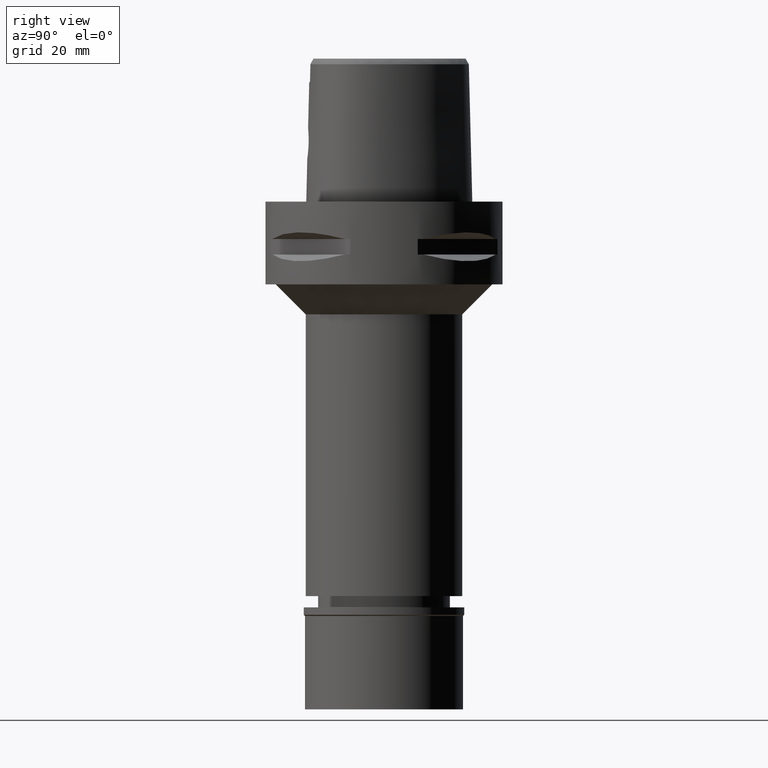
[diagram: clean part render]
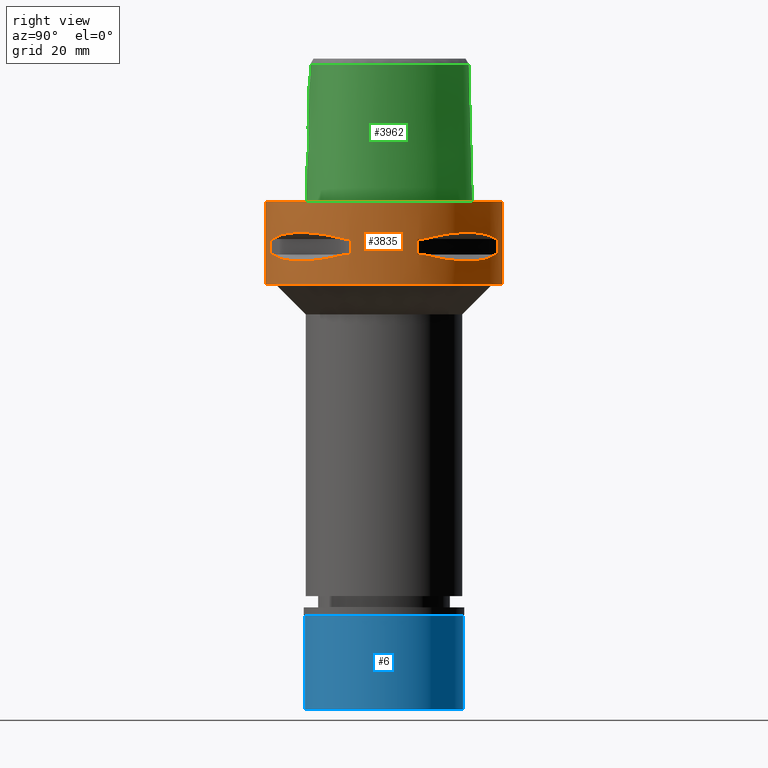
[diagram: same view with three faces highlighted in distinct colors, each labeled with its STEP entity id]
A machine part, right view with three faces highlighted in distinct colors.
Their STEP definitions:

[orange] entity #3835 — the highlighted cylindrical surface (partial cylindrical patch) has radius 31.5 mm, axis along (0, 0, -1).
#33 = DIRECTION ( 'NONE',  ( 0.9433937698468619626, 0.3316748332540863653, 0.0000000000000000000 ) ) ;
#48 = VERTEX_POINT ( 'NONE', #4682 ) ;
#50 = CARTESIAN_POINT ( 'NONE',  ( 0.0000000000000000000, 0.0000000000000000000, -9.950000000000001066 ) ) ;
#52 = FACE_BOUND ( 'NONE', #3610, .T. ) ;
#64 = ORIENTED_EDGE ( 'NONE', *, *, #2281, .F. ) ;
#74 = AXIS2_PLACEMENT_3D ( 'NONE', #248, #4391, #2987 ) ;
#119 = CARTESIAN_POINT ( 'NONE',  ( 26.60451452154907059, 16.86571563436881149, -15.39949295786330197 ) ) ;
#151 = VERTEX_POINT ( 'NONE', #1403 ) ;
#171 = CARTESIAN_POINT ( 'NONE',  ( 25.43927894892505392, -18.59229662064599609, -15.62866126334696482 ) ) ;
#198 = CARTESIAN_POINT ( 'NONE',  ( 15.11986997311391612, -27.64634172017876068, -15.11207862404153524 ) ) ;
#220 = CARTESIAN_POINT ( 'NONE',  ( 28.91382665369116722, -12.73197616787390629, -14.65467361753813513 ) ) ;
#246 = CARTESIAN_POINT ( 'NONE',  ( 0.0000000000000000000, 0.0000000000000000000, -14.05000000000000071 ) ) ;
#248 = CARTESIAN_POINT ( 'NONE',  ( 0.0000000000000000000, 0.0000000000000000000, -9.950000000000001066 ) ) ;
#249 = CIRCLE ( 'NONE', #3212, 31.50000000000000711 ) ;
#262 = ORIENTED_EDGE ( 'NONE', *, *, #2119, .T. ) ;
#308 = DIRECTION ( 'NONE',  ( 0.0000000000000000000, 0.0000000000000000000, 1.000000000000000000 ) ) ;
#346 = EDGE_CURVE ( 'NONE', #848, #151, #2666, .T. ) ;
#410 = AXIS2_PLACEMENT_3D ( 'NONE', #3709, #4118, #2950 ) ;
#425 = EDGE_CURVE ( 'NONE', #1103, #919, #925, .T. ) ;
#437 = CARTESIAN_POINT ( 'NONE',  ( 10.44775724750000023, -29.71690375017999841, -9.950000000002001244 ) ) ;
#442 = CARTESIAN_POINT ( 'NONE',  ( 17.35163608579731687, 26.29071741524046146, -15.46976201925743055 ) ) ;
#454 = CARTESIAN_POINT ( 'NONE',  ( 29.71690375017999841, -10.44775724750000023, -9.950000000002001244 ) ) ;
#469 = LINE ( 'NONE', #3162, #3771 ) ;
#475 = CARTESIAN_POINT ( 'NONE',  ( 8.981198972016999349, 30.19251670572000279, -9.950000000000001066 ) ) ;
#493 = CARTESIAN_POINT ( 'NONE',  ( 26.70521063584596888, 16.70616724746230730, -15.37546661818052307 ) ) ;
#514 = CARTESIAN_POINT ( 'NONE',  ( 29.71690375017999841, -10.44775724750000023, -14.05000000000000071 ) ) ;
#520 = EDGE_CURVE ( 'NONE', #3050, #2548, #4102, .T. ) ;
#579 = EDGE_CURVE ( 'NONE', #3273, #848, #4788, .T. ) ;
#611 = DIRECTION ( 'NONE',  ( 0.3316748332540863653, -0.9433937698468619626, 0.0000000000000000000 ) ) ;
#659 = DIRECTION ( 'NONE',  ( 0.0000000000000000000, 0.0000000000000000000, 1.000000000000000000 ) ) ;
#738 = VERTEX_POINT ( 'NONE', #4890 ) ;
#770 = EDGE_CURVE ( 'NONE', #1542, #1385, #1109, .T. ) ;
#773 = DIRECTION ( 'NONE',  ( 0.0000000000000000000, 0.0000000000000000000, -1.000000000000000000 ) ) ;
#774 = CARTESIAN_POINT ( 'NONE',  ( 12.70097436179019113, 28.92472615206971653, -9.353533115220882266 ) ) ;
#812 = CARTESIAN_POINT ( 'NONE',  ( 21.46242677077769656, 23.08532645888790213, -15.83938991065623014 ) ) ;
#833 = EDGE_CURVE ( 'NONE', #2244, #4586, #3398, .T. ) ;
#837 = CARTESIAN_POINT ( 'NONE',  ( 20.18579225685413903, 24.23018836746430082, -15.78559396979327367 ) ) ;
#848 = VERTEX_POINT ( 'NONE', #1867 ) ;
#868 = CARTESIAN_POINT ( 'NONE',  ( 16.98999780422225214, 26.52527364208797778, -15.41788098766626369 ) ) ;
#876 = DIRECTION ( 'NONE',  ( 0.9584925938322735872, 0.2851174276831918153, 0.0000000000000000000 ) ) ;
#882 = CIRCLE ( 'NONE', #410, 31.50000000000001776 ) ;
#887 = EDGE_LOOP ( 'NONE', ( #2719, #64, #3817, #1960, #4749, #4554, #2382, #4392 ) ) ;
#919 = VERTEX_POINT ( 'NONE', #4488 ) ;
#925 = LINE ( 'NONE', #4064, #2827 ) ;
#929 = CARTESIAN_POINT ( 'NONE',  ( 30.19251670572000279, -8.981198972016999349, -9.950000000000001066 ) ) ;
#935 = CARTESIAN_POINT ( 'NONE',  ( 16.48208282229545318, -26.84474411198741350, -15.34094883778379348 ) ) ;
#956 = DIRECTION ( 'NONE',  ( 0.0000000000000000000, 0.0000000000000000000, -1.000000000000000000 ) ) ;
#966 = CARTESIAN_POINT ( 'NONE',  ( 16.03138450079309862, -27.11872488589068553, -15.26880420108148506 ) ) ;
#979 = AXIS2_PLACEMENT_3D ( 'NONE', #2044, #1739, #3626 ) ;
#1035 = CARTESIAN_POINT ( 'NONE',  ( 0.0000000000000000000, 0.0000000000000000000, -22.00000000000000000 ) ) ;
#1103 = VERTEX_POINT ( 'NONE', #1629 ) ;
#1109 = LINE ( 'NONE', #1480, #4821 ) ;
#1152 = DIRECTION ( 'NONE',  ( 0.0000000000000000000, 0.0000000000000000000, -1.000000000000000000 ) ) ;
#1162 = CARTESIAN_POINT ( 'NONE',  ( 10.44775724750000023, 29.71690375017999841, -14.05000000000000071 ) ) ;
#1175 = CARTESIAN_POINT ( 'NONE',  ( 0.0000000000000000000, 31.50000000000000000, 0.0000000000000000000 ) ) ;
#1176 = CARTESIAN_POINT ( 'NONE',  ( 18.81455742168905232, -25.37277178164058711, -8.309746333112718375 ) ) ;
#1197 = CARTESIAN_POINT ( 'NONE',  ( 20.64154884324731043, -23.90617837150517389, -8.160627831300901747 ) ) ;
#1245 = DIRECTION ( 'NONE',  ( 0.0000000000000000000, 0.0000000000000000000, 1.000000000000000000 ) ) ;
#1265 = CARTESIAN_POINT ( 'NONE',  ( 26.42800887047804181, -17.14106442934815533, -15.43984550238795350 ) ) ;
#1279 = DIRECTION ( 'NONE',  ( 0.0000000000000000000, 0.0000000000000000000, 1.000000000000000000 ) ) ;
#1357 = CARTESIAN_POINT ( 'NONE',  ( 0.0000000000000000000, -31.50000000000000000, 0.0000000000000000000 ) ) ;
#1385 = VERTEX_POINT ( 'NONE', #929 ) ;
#1393 = DIRECTION ( 'NONE',  ( 0.0000000000000000000, 0.0000000000000000000, -1.000000000000000000 ) ) ;
#1403 = CARTESIAN_POINT ( 'NONE',  ( 0.0000000000000000000, 31.50000000000000000, -22.00000000000000000 ) ) ;
#1407 = DIRECTION ( 'NONE',  ( 0.0000000000000000000, 0.0000000000000000000, 1.000000000000000000 ) ) ;
#1480 = CARTESIAN_POINT ( 'NONE',  ( 30.19251670572000279, -8.981198972016999349, -14.05000000000000071 ) ) ;
#1542 = VERTEX_POINT ( 'NONE', #4042 ) ;
#1546 = VERTEX_POINT ( 'NONE', #4819 ) ;
#1548 = CARTESIAN_POINT ( 'NONE',  ( 27.11872488589068553, 16.03138450079309862, -15.26880420108148506 ) ) ;
#1566 = CARTESIAN_POINT ( 'NONE',  ( 16.96123479565122238, 26.54368690921823060, -15.41365572341632095 ) ) ;
#1578 = CARTESIAN_POINT ( 'NONE',  ( 14.84422749205300285, -27.88214534467226713, -8.906206096483272106 ) ) ;
#1629 = CARTESIAN_POINT ( 'NONE',  ( 30.19251670572000279, 8.981198972019999616, -9.950000000000001066 ) ) ;
#1643 = CARTESIAN_POINT ( 'NONE',  ( 26.01217882835248929, -17.76952662671760308, -15.52665221626392800 ) ) ;
#1645 = EDGE_LOOP ( 'NONE', ( #262, #4841, #4566, #3422 ) ) ;
#1646 = ORIENTED_EDGE ( 'NONE', *, *, #1929, .T. ) ;
#1647 = CARTESIAN_POINT ( 'NONE',  ( 14.89252659056515427, 27.86285265926851551, -15.10765629751784012 ) ) ;
#1687 = EDGE_CURVE ( 'NONE', #2978, #738, #3995, .T. ) ;
#1688 = CIRCLE ( 'NONE', #1924, 31.50000000000000000 ) ;
#1694 = VERTEX_POINT ( 'NONE', #2326 ) ;
#1739 = DIRECTION ( 'NONE',  ( 0.0000000000000000000, 0.0000000000000000000, -1.000000000000000000 ) ) ;
#1743 = CARTESIAN_POINT ( 'NONE',  ( 10.44775724750000023, -29.71690375017999841, -14.05000000000000071 ) ) ;
#1759 = VERTEX_POINT ( 'NONE', #2432 ) ;
#1853 = EDGE_CURVE ( 'NONE', #1694, #919, #2414, .T. ) ;
#1867 = CARTESIAN_POINT ( 'NONE',  ( 0.0000000000000000000, -31.50000000000000000, -22.00000000000000000 ) ) ;
#1886 = CARTESIAN_POINT ( 'NONE',  ( 29.71690375017999841, 10.44775724750000023, -9.950000000002001244 ) ) ;
#1924 = AXIS2_PLACEMENT_3D ( 'NONE', #3135, #4584, #3462 ) ;
#1929 = EDGE_CURVE ( 'NONE', #4586, #4090, #2640, .T. ) ;
#1934 = CARTESIAN_POINT ( 'NONE',  ( 8.981198972019999616, -30.19251670572000279, -9.950000000000001066 ) ) ;
#1960 = ORIENTED_EDGE ( 'NONE', *, *, #3965, .F. ) ;
#1969 = EDGE_CURVE ( 'NONE', #4090, #1385, #3045, .T. ) ;
#2041 = ORIENTED_EDGE ( 'NONE', *, *, #770, .F. ) ;
#2044 = CARTESIAN_POINT ( 'NONE',  ( 0.0000000000000000000, 0.0000000000000000000, -14.05000000000000071 ) ) ;
#2056 = CARTESIAN_POINT ( 'NONE',  ( 26.64486562695897121, 16.80193241490862022, -15.38992683736031708 ) ) ;
#2094 = VECTOR ( 'NONE', #773, 1000.000000000000000 ) ;
#2103 = CARTESIAN_POINT ( 'NONE',  ( 26.48642424310703447, -17.05047092244371854, -15.42670883407968674 ) ) ;
#2119 = EDGE_CURVE ( 'NONE', #1546, #3273, #1688, .T. ) ;
#2127 = CARTESIAN_POINT ( 'NONE',  ( 24.23018836746430082, -20.18579225685413903, -15.78559396979327367 ) ) ;
#2177 = CIRCLE ( 'NONE', #3448, 31.50000000000000711 ) ;
#2244 = VERTEX_POINT ( 'NONE', #1934 ) ;
#2274 = CARTESIAN_POINT ( 'NONE',  ( 20.64154884324738148, 23.90617837150510283, -8.160613588479783687 ) ) ;
#2281 = EDGE_CURVE ( 'NONE', #3050, #2770, #469, .T. ) ;
#2325 = FACE_OUTER_BOUND ( 'NONE', #1645, .T. ) ;
#2326 = CARTESIAN_POINT ( 'NONE',  ( 29.71690375017999841, 10.44775724750000023, -14.05000000000000071 ) ) ;
#2368 = CARTESIAN_POINT ( 'NONE',  ( 29.31542262584231651, 11.58970337495594194, -14.35229357167384912 ) ) ;
#2382 = ORIENTED_EDGE ( 'NONE', *, *, #2868, .T. ) ;
#2414 = CIRCLE ( 'NONE', #3440, 31.50000000000000711 ) ;
#2415 = CARTESIAN_POINT ( 'NONE',  ( 10.44775724750000023, -29.71690375017999841, -14.05000000000000071 ) ) ;
#2418 = CARTESIAN_POINT ( 'NONE',  ( 26.84474411198741350, 16.48208282229545318, -15.34094883778379348 ) ) ;
#2432 = CARTESIAN_POINT ( 'NONE',  ( 29.71690375017999841, -10.44775724750000023, -14.05000000000000071 ) ) ;
#2440 = CARTESIAN_POINT ( 'NONE',  ( 20.65093790435025767, -23.89673728057072211, -15.83935804902266931 ) ) ;
#2442 = CARTESIAN_POINT ( 'NONE',  ( 29.71690375017999841, 10.44775724750000023, -14.05000000000000071 ) ) ;
#2460 = CARTESIAN_POINT ( 'NONE',  ( 16.80193241490862022, -26.64486562695897121, -15.38992683736031708 ) ) ;
#2479 = EDGE_CURVE ( 'NONE', #4798, #1759, #4176, .T. ) ;
#2484 = CARTESIAN_POINT ( 'NONE',  ( 23.08532645888790213, -21.46242677077769656, -15.83938991065623014 ) ) ;
#2511 = CARTESIAN_POINT ( 'NONE',  ( 13.25636937905766999, -28.62019653468112068, -14.74888225542022369 ) ) ;
#2532 = LINE ( 'NONE', #4124, #4636 ) ;
#2548 = VERTEX_POINT ( 'NONE', #3071 ) ;
#2640 = B_SPLINE_CURVE_WITH_KNOTS ( 'NONE', 3,
 ( #3094, #4618, #1578, #1176, #1197, #2723, #3871, #4233, #3892, #454 ),
 .UNSPECIFIED., .F., .F.,
 ( 4, 2, 2, 2, 4 ),
 ( 0.0000000000000000000, 0.2500000000000000000, 0.5000000000000000000, 0.7500000000000000000, 1.000000000000000000 ),
 .UNSPECIFIED. ) ;
#2641 = EDGE_CURVE ( 'NONE', #2244, #48, #2532, .T. ) ;
#2666 = CIRCLE ( 'NONE', #4168, 31.50000000000000000 ) ;
#2714 = CARTESIAN_POINT ( 'NONE',  ( 17.14106442934815533, 26.42800887047804181, -15.43984550238795350 ) ) ;
#2719 = ORIENTED_EDGE ( 'NONE', *, *, #3471, .T. ) ;
#2723 = CARTESIAN_POINT ( 'NONE',  ( 23.90617837150511349, -20.64154884324738148, -8.160613588479785463 ) ) ;
#2732 = AXIS2_PLACEMENT_3D ( 'NONE', #50, #1279, #876 ) ;
#2766 = DIRECTION ( 'NONE',  ( 0.0000000000000000000, 0.0000000000000000000, -1.000000000000000000 ) ) ;
#2770 = VERTEX_POINT ( 'NONE', #475 ) ;
#2777 = CARTESIAN_POINT ( 'NONE',  ( 28.62019653468112068, 13.25636937905766999, -14.74888225542022369 ) ) ;
#2804 = CARTESIAN_POINT ( 'NONE',  ( 11.58970337495594194, -29.31542262584231651, -14.35229357167384912 ) ) ;
#2806 = CARTESIAN_POINT ( 'NONE',  ( 17.76952662671760308, 26.01217882835248929, -15.52665221626392800 ) ) ;
#2821 = ORIENTED_EDGE ( 'NONE', *, *, #833, .T. ) ;
#2827 = VECTOR ( 'NONE', #2869, 1000.000000000000000 ) ;
#2868 = EDGE_CURVE ( 'NONE', #1103, #2978, #4887, .T. ) ;
#2869 = DIRECTION ( 'NONE',  ( 0.0000000000000000000, 0.0000000000000000000, -1.000000000000000000 ) ) ;
#2878 = CARTESIAN_POINT ( 'NONE',  ( 16.89910283486696940, -26.58330558444649583, -15.40446471307537202 ) ) ;
#2950 = DIRECTION ( 'NONE',  ( 0.9584925938322735872, -0.2851174276831918153, 0.0000000000000000000 ) ) ;
#2956 = DIRECTION ( 'NONE',  ( 0.0000000000000000000, 0.0000000000000000000, -1.000000000000000000 ) ) ;
#2976 = DIRECTION ( 'NONE',  ( 0.3316748332540863653, 0.9433937698468619626, 0.0000000000000000000 ) ) ;
#2978 = VERTEX_POINT ( 'NONE', #3115 ) ;
#2987 = DIRECTION ( 'NONE',  ( 0.9433937698468619626, -0.3316748332540863653, 0.0000000000000000000 ) ) ;
#3023 = CARTESIAN_POINT ( 'NONE',  ( 28.92474506843117865, 12.70092055735358016, -9.353547358217943142 ) ) ;
#3045 = CIRCLE ( 'NONE', #74, 31.50000000000000711 ) ;
#3050 = VERTEX_POINT ( 'NONE', #4838 ) ;
#3071 = CARTESIAN_POINT ( 'NONE',  ( 10.44775724750000023, 29.71690375017999841, -14.05000000000000071 ) ) ;
#3072 = FACE_BOUND ( 'NONE', #887, .T. ) ;
#3083 = CARTESIAN_POINT ( 'NONE',  ( 25.32725744466094753, 18.86897208075735222, -15.69588095933972838 ) ) ;
#3094 = CARTESIAN_POINT ( 'NONE',  ( 10.44775724750000023, -29.71690375017999841, -9.950000000002001244 ) ) ;
#3115 = CARTESIAN_POINT ( 'NONE',  ( 29.71690375017999841, 10.44775724750000023, -9.950000000002001244 ) ) ;
#3116 = DIRECTION ( 'NONE',  ( 0.0000000000000000000, -1.000000000000000000, 0.0000000000000000000 ) ) ;
#3135 = CARTESIAN_POINT ( 'NONE',  ( 0.0000000000000000000, 0.0000000000000000000, 1.243449787579999883E-14 ) ) ;
#3160 = B_SPLINE_CURVE_WITH_KNOTS ( 'NONE', 3,
 ( #2442, #2368, #2777, #4243, #1548, #2418, #493, #2056, #119, #4703, #3083, #3927, #812, #837, #4605, #2806, #442, #2714, #4221, #868, #1566, #1647, #4652, #1162 ),
 .UNSPECIFIED., .F., .F.,
 ( 4, 1, 1, 1, 1, 1, 2, 2, 2, 1, 1, 1, 1, 1, 2, 2, 4 ),
 ( 0.0000000000000000000, 0.1250000000000017486, 0.1875000000000026090, 0.2187500000000033029, 0.2343750000000038858, 0.2421875000000042744, 0.2460937500000044686, 0.2500000000000046629, 0.5000000000000101030, 0.6250000000000126565, 0.6875000000000138778, 0.7187500000000146549, 0.7343750000000150990, 0.7421875000000150990, 0.7460937500000149880, 0.7500000000000149880, 1.000000000000000000 ),
 .UNSPECIFIED. ) ;
#3162 = CARTESIAN_POINT ( 'NONE',  ( 8.981198972016999349, 30.19251670572000279, -14.05000000000000071 ) ) ;
#3177 = CARTESIAN_POINT ( 'NONE',  ( 16.70616724746230730, -26.70521063584596888, -15.37546661818052307 ) ) ;
#3212 = AXIS2_PLACEMENT_3D ( 'NONE', #246, #1393, #611 ) ;
#3247 = ORIENTED_EDGE ( 'NONE', *, *, #3592, .T. ) ;
#3271 = DIRECTION ( 'NONE',  ( 0.0000000000000000000, -1.000000000000000000, 0.0000000000000000000 ) ) ;
#3273 = VERTEX_POINT ( 'NONE', #4813 ) ;
#3325 = DIRECTION ( 'NONE',  ( 0.0000000000000000000, 0.0000000000000000000, 1.000000000000000000 ) ) ;
#3398 = CIRCLE ( 'NONE', #3549, 31.50000000000001776 ) ;
#3421 = CARTESIAN_POINT ( 'NONE',  ( 18.81462633026355391, 25.37272068403001768, -8.309724968617139496 ) ) ;
#3422 = ORIENTED_EDGE ( 'NONE', *, *, #3725, .F. ) ;
#3434 = EDGE_CURVE ( 'NONE', #4798, #48, #249, .T. ) ;
#3440 = AXIS2_PLACEMENT_3D ( 'NONE', #3493, #2766, #33 ) ;
#3448 = AXIS2_PLACEMENT_3D ( 'NONE', #3731, #659, #2976 ) ;
#3462 = DIRECTION ( 'NONE',  ( 0.0000000000000000000, 1.000000000000000000, 0.0000000000000000000 ) ) ;
#3471 = EDGE_CURVE ( 'NONE', #738, #2770, #2177, .T. ) ;
#3493 = CARTESIAN_POINT ( 'NONE',  ( 0.0000000000000000000, 0.0000000000000000000, -14.05000000000000071 ) ) ;
#3501 = ORIENTED_EDGE ( 'NONE', *, *, #2479, .F. ) ;
#3535 = AXIS2_PLACEMENT_3D ( 'NONE', #3891, #1152, #3116 ) ;
#3549 = AXIS2_PLACEMENT_3D ( 'NONE', #4514, #308, #4868 ) ;
#3592 = EDGE_CURVE ( 'NONE', #1542, #1759, #882, .T. ) ;
#3610 = EDGE_LOOP ( 'NONE', ( #4329, #2041, #3247, #3501, #4643, #3975, #2821, #1646 ) ) ;
#3626 = DIRECTION ( 'NONE',  ( 0.2851174276831918153, 0.9584925938322735872, 0.0000000000000000000 ) ) ;
#3709 = CARTESIAN_POINT ( 'NONE',  ( 0.0000000000000000000, 0.0000000000000000000, -14.05000000000000071 ) ) ;
#3725 = EDGE_CURVE ( 'NONE', #1546, #151, #4183, .T. ) ;
#3731 = CARTESIAN_POINT ( 'NONE',  ( 0.0000000000000000000, 0.0000000000000000000, -9.950000000000001066 ) ) ;
#3771 = VECTOR ( 'NONE', #1245, 1000.000000000000000 ) ;
#3817 = ORIENTED_EDGE ( 'NONE', *, *, #520, .T. ) ;
#3824 = CARTESIAN_POINT ( 'NONE',  ( 27.88214534467228489, 14.84422749205298331, -8.906206096483270329 ) ) ;
#3835 = ADVANCED_FACE ( 'NONE', ( #2325, #52, #3072 ), #4591, .T. ) ;
#3871 = CARTESIAN_POINT ( 'NONE',  ( 25.37272068403008518, -18.81462633026348286, -8.309724968617141272 ) ) ;
#3891 = CARTESIAN_POINT ( 'NONE',  ( 0.0000000000000000000, 0.0000000000000000000, 6.200000000000000178 ) ) ;
#3892 = CARTESIAN_POINT ( 'NONE',  ( 28.92472615206976982, -12.70097436179008099, -9.353533115220889371 ) ) ;
#3927 = CARTESIAN_POINT ( 'NONE',  ( 23.89673728057072211, 20.65093790435025767, -15.83935804902266931 ) ) ;
#3949 = CARTESIAN_POINT ( 'NONE',  ( 26.54368690921823060, -16.96123479565122238, -15.41365572341632095 ) ) ;
#3965 = EDGE_CURVE ( 'NONE', #1694, #2548, #3160, .T. ) ;
#3973 = CARTESIAN_POINT ( 'NONE',  ( 16.86571563436881149, -26.60451452154907059, -15.39949295786330197 ) ) ;
#3975 = ORIENTED_EDGE ( 'NONE', *, *, #2641, .F. ) ;
#3995 = B_SPLINE_CURVE_WITH_KNOTS ( 'NONE', 3,
 ( #1886, #3023, #3824, #4208, #4541, #2274, #3421, #4569, #774, #4491 ),
 .UNSPECIFIED., .F., .F.,
 ( 4, 2, 2, 2, 4 ),
 ( 0.0000000000000000000, 0.2499999999999999445, 0.4999999999999998890, 0.7499999999999997780, 1.000000000000000000 ),
 .UNSPECIFIED. ) ;
#4024 = CARTESIAN_POINT ( 'NONE',  ( 26.52527364208797778, -16.98999780422225214, -15.41788098766626369 ) ) ;
#4042 = CARTESIAN_POINT ( 'NONE',  ( 30.19251670572000279, -8.981198972019999616, -14.05000000000000071 ) ) ;
#4064 = CARTESIAN_POINT ( 'NONE',  ( 30.19251670572000279, 8.981198972016999349, -9.950000000000001066 ) ) ;
#4090 = VERTEX_POINT ( 'NONE', #4364 ) ;
#4102 = CIRCLE ( 'NONE', #979, 31.50000000000001776 ) ;
#4118 = DIRECTION ( 'NONE',  ( 0.0000000000000000000, 0.0000000000000000000, -1.000000000000000000 ) ) ;
#4124 = CARTESIAN_POINT ( 'NONE',  ( 8.981198972016999349, -30.19251670572000279, -9.950000000000001066 ) ) ;
#4168 = AXIS2_PLACEMENT_3D ( 'NONE', #1035, #3325, #3271 ) ;
#4176 = B_SPLINE_CURVE_WITH_KNOTS ( 'NONE', 3,
 ( #2415, #2804, #2511, #198, #966, #935, #3177, #2460, #3973, #2878, #4286, #2440, #2484, #2127, #171, #1643, #4334, #1265, #2103, #4024, #3949, #4387, #220, #514 ),
 .UNSPECIFIED., .F., .F.,
 ( 4, 1, 1, 1, 1, 1, 2, 2, 2, 1, 1, 1, 1, 1, 2, 2, 4 ),
 ( 0.0000000000000000000, 0.1250000000000017486, 0.1875000000000026090, 0.2187500000000033029, 0.2343750000000038858, 0.2421875000000042744, 0.2460937500000044686, 0.2500000000000046629, 0.5000000000000101030, 0.6250000000000126565, 0.6875000000000138778, 0.7187500000000146549, 0.7343750000000150990, 0.7421875000000150990, 0.7460937500000149880, 0.7500000000000149880, 1.000000000000000000 ),
 .UNSPECIFIED. ) ;
#4183 = LINE ( 'NONE', #1175, #2094 ) ;
#4208 = CARTESIAN_POINT ( 'NONE',  ( 25.37277178164058000, 18.81455742168906653, -8.309746333112720151 ) ) ;
#4221 = CARTESIAN_POINT ( 'NONE',  ( 17.05047092244371854, 26.48642424310703447, -15.42670883407968674 ) ) ;
#4233 = CARTESIAN_POINT ( 'NONE',  ( 27.88210502987335460, -14.84430321572431666, -8.906184731987691450 ) ) ;
#4243 = CARTESIAN_POINT ( 'NONE',  ( 27.64634172017876068, 15.11986997311391612, -15.11207862404153524 ) ) ;
#4286 = CARTESIAN_POINT ( 'NONE',  ( 18.86897208075735222, -25.32725744466094753, -15.69588095933972838 ) ) ;
#4329 = ORIENTED_EDGE ( 'NONE', *, *, #1969, .T. ) ;
#4334 = CARTESIAN_POINT ( 'NONE',  ( 26.29071741524046146, -17.35163608579731687, -15.46976201925743055 ) ) ;
#4364 = CARTESIAN_POINT ( 'NONE',  ( 29.71690375017999841, -10.44775724750000023, -9.950000000002001244 ) ) ;
#4387 = CARTESIAN_POINT ( 'NONE',  ( 27.86285265926851551, -14.89252659056515427, -15.10765629751784012 ) ) ;
#4391 = DIRECTION ( 'NONE',  ( 0.0000000000000000000, 0.0000000000000000000, 1.000000000000000000 ) ) ;
#4392 = ORIENTED_EDGE ( 'NONE', *, *, #1687, .T. ) ;
#4488 = CARTESIAN_POINT ( 'NONE',  ( 30.19251670572000279, 8.981198972016999349, -14.05000000000000071 ) ) ;
#4491 = CARTESIAN_POINT ( 'NONE',  ( 10.44775724750000023, 29.71690375017999841, -9.950000000002001244 ) ) ;
#4514 = CARTESIAN_POINT ( 'NONE',  ( 0.0000000000000000000, 0.0000000000000000000, -9.950000000000001066 ) ) ;
#4541 = CARTESIAN_POINT ( 'NONE',  ( 23.90617837150504599, 20.64154884324745609, -8.160627831300901747 ) ) ;
#4554 = ORIENTED_EDGE ( 'NONE', *, *, #425, .F. ) ;
#4566 = ORIENTED_EDGE ( 'NONE', *, *, #346, .T. ) ;
#4569 = CARTESIAN_POINT ( 'NONE',  ( 14.84430321572445344, 27.88210502987327644, -8.906184731987689673 ) ) ;
#4584 = DIRECTION ( 'NONE',  ( 0.0000000000000000000, 0.0000000000000000000, -1.000000000000000000 ) ) ;
#4586 = VERTEX_POINT ( 'NONE', #437 ) ;
#4591 = CYLINDRICAL_SURFACE ( 'NONE', #3535, 31.50000000000000000 ) ;
#4605 = CARTESIAN_POINT ( 'NONE',  ( 18.59229662064599609, 25.43927894892505392, -15.62866126334696482 ) ) ;
#4618 = CARTESIAN_POINT ( 'NONE',  ( 12.70092055735361924, -28.92474506843114668, -9.353547358217939589 ) ) ;
#4636 = VECTOR ( 'NONE', #2956, 1000.000000000000000 ) ;
#4643 = ORIENTED_EDGE ( 'NONE', *, *, #3434, .T. ) ;
#4652 = CARTESIAN_POINT ( 'NONE',  ( 12.73197616787390629, 28.91382665369116722, -14.65467361753813513 ) ) ;
#4682 = CARTESIAN_POINT ( 'NONE',  ( 8.981198972016999349, -30.19251670572000279, -14.05000000000000071 ) ) ;
#4703 = CARTESIAN_POINT ( 'NONE',  ( 26.58330558444649583, 16.89910283486696940, -15.40446471307537202 ) ) ;
#4736 = VECTOR ( 'NONE', #956, 1000.000000000000000 ) ;
#4749 = ORIENTED_EDGE ( 'NONE', *, *, #1853, .T. ) ;
#4788 = LINE ( 'NONE', #1357, #4736 ) ;
#4798 = VERTEX_POINT ( 'NONE', #1743 ) ;
#4813 = CARTESIAN_POINT ( 'NONE',  ( 0.0000000000000000000, -31.50000000000000000, 1.243449787579999883E-14 ) ) ;
#4819 = CARTESIAN_POINT ( 'NONE',  ( 0.0000000000000000000, 31.50000000000000000, 1.243449787579999883E-14 ) ) ;
#4821 = VECTOR ( 'NONE', #1407, 1000.000000000000000 ) ;
#4838 = CARTESIAN_POINT ( 'NONE',  ( 8.981198972019999616, 30.19251670572000279, -14.05000000000000071 ) ) ;
#4841 = ORIENTED_EDGE ( 'NONE', *, *, #579, .T. ) ;
#4868 = DIRECTION ( 'NONE',  ( 0.2851174276831918153, -0.9584925938322735872, 0.0000000000000000000 ) ) ;
#4887 = CIRCLE ( 'NONE', #2732, 31.50000000000001776 ) ;
#4890 = CARTESIAN_POINT ( 'NONE',  ( 10.44775724750000023, 29.71690375017999841, -9.950000000002001244 ) ) ;

[blue] entity #6 — the highlighted cylindrical surface (partial cylindrical patch) has radius 21 mm, axis along (0, 0, -1).
#5 = EDGE_LOOP ( 'NONE', ( #3532, #2417, #4306, #16 ) ) ;
#6 = ADVANCED_FACE ( 'NONE', ( #1005 ), #2392, .T. ) ;
#16 = ORIENTED_EDGE ( 'NONE', *, *, #2407, .F. ) ;
#149 = DIRECTION ( 'NONE',  ( 0.0000000000000000000, 0.0000000000000000000, 1.000000000000000000 ) ) ;
#195 = LINE ( 'NONE', #4765, #379 ) ;
#252 = CIRCLE ( 'NONE', #2391, 21.00000000000000000 ) ;
#321 = CARTESIAN_POINT ( 'NONE',  ( 0.0000000000000000000, 21.00000000000000000, -2.299999999999999822 ) ) ;
#348 = DIRECTION ( 'NONE',  ( 0.0000000000000000000, 0.0000000000000000000, -1.000000000000000000 ) ) ;
#378 = DIRECTION ( 'NONE',  ( 0.0000000000000000000, 0.0000000000000000000, -1.000000000000000000 ) ) ;
#379 = VECTOR ( 'NONE', #3654, 1000.000000000000000 ) ;
#498 = CARTESIAN_POINT ( 'NONE',  ( 0.0000000000000000000, -21.00000000000000000, -2.299999999999999822 ) ) ;
#694 = LINE ( 'NONE', #321, #3700 ) ;
#765 = AXIS2_PLACEMENT_3D ( 'NONE', #3249, #4409, #988 ) ;
#971 = AXIS2_PLACEMENT_3D ( 'NONE', #1216, #378, #1127 ) ;
#988 = DIRECTION ( 'NONE',  ( 0.0000000000000000000, 1.000000000000000000, 0.0000000000000000000 ) ) ;
#1005 = FACE_OUTER_BOUND ( 'NONE', #5, .T. ) ;
#1127 = DIRECTION ( 'NONE',  ( 0.0000000000000000000, -1.000000000000000000, 0.0000000000000000000 ) ) ;
#1173 = VERTEX_POINT ( 'NONE', #498 ) ;
#1216 = CARTESIAN_POINT ( 'NONE',  ( 0.0000000000000000000, 0.0000000000000000000, 0.0000000000000000000 ) ) ;
#1328 = VERTEX_POINT ( 'NONE', #4771 ) ;
#1777 = CARTESIAN_POINT ( 'NONE',  ( 0.0000000000000000000, 0.0000000000000000000, -27.09999999999999787 ) ) ;
#1819 = CIRCLE ( 'NONE', #765, 21.00000000000000000 ) ;
#2391 = AXIS2_PLACEMENT_3D ( 'NONE', #1777, #149, #2486 ) ;
#2392 = CYLINDRICAL_SURFACE ( 'NONE', #971, 21.00000000000000000 ) ;
#2407 = EDGE_CURVE ( 'NONE', #1328, #3799, #694, .T. ) ;
#2417 = ORIENTED_EDGE ( 'NONE', *, *, #4828, .T. ) ;
#2486 = DIRECTION ( 'NONE',  ( 0.0000000000000000000, -1.000000000000000000, 0.0000000000000000000 ) ) ;
#3249 = CARTESIAN_POINT ( 'NONE',  ( 0.0000000000000000000, 0.0000000000000000000, -2.299999999999999822 ) ) ;
#3516 = CARTESIAN_POINT ( 'NONE',  ( 0.0000000000000000000, 21.00000000000000000, -27.09999999999999787 ) ) ;
#3532 = ORIENTED_EDGE ( 'NONE', *, *, #4742, .T. ) ;
#3613 = VERTEX_POINT ( 'NONE', #3681 ) ;
#3654 = DIRECTION ( 'NONE',  ( 0.0000000000000000000, 0.0000000000000000000, -1.000000000000000000 ) ) ;
#3681 = CARTESIAN_POINT ( 'NONE',  ( 0.0000000000000000000, -21.00000000000000000, -27.09999999999999787 ) ) ;
#3700 = VECTOR ( 'NONE', #348, 1000.000000000000000 ) ;
#3799 = VERTEX_POINT ( 'NONE', #3516 ) ;
#4012 = EDGE_CURVE ( 'NONE', #3613, #3799, #252, .T. ) ;
#4306 = ORIENTED_EDGE ( 'NONE', *, *, #4012, .T. ) ;
#4409 = DIRECTION ( 'NONE',  ( 0.0000000000000000000, 0.0000000000000000000, -1.000000000000000000 ) ) ;
#4742 = EDGE_CURVE ( 'NONE', #1328, #1173, #1819, .T. ) ;
#4765 = CARTESIAN_POINT ( 'NONE',  ( 0.0000000000000000000, -21.00000000000000000, -2.299999999999999822 ) ) ;
#4771 = CARTESIAN_POINT ( 'NONE',  ( 0.0000000000000000000, 21.00000000000000000, -2.299999999999999822 ) ) ;
#4828 = EDGE_CURVE ( 'NONE', #1173, #3613, #195, .T. ) ;

[green] entity #3962 — the highlighted face is a freeform B-spline surface patch.
#8 = CARTESIAN_POINT ( 'NONE',  ( 3.927790621348953515, -20.09243382074338413, 14.47756111163828052 ) ) ;
#23 = CARTESIAN_POINT ( 'NONE',  ( -0.7025952811604000425, 23.15559737385000005, 11.93048553905999931 ) ) ;
#25 = EDGE_CURVE ( 'NONE', #266, #937, #47, .T. ) ;
#29 = CARTESIAN_POINT ( 'NONE',  ( 3.850246712570787100, -20.10780614032470837, 14.21172176769479734 ) ) ;
#47 = B_SPLINE_CURVE_WITH_KNOTS ( 'NONE', 3,
 ( #3482, #2371, #3885, #3111 ),
 .UNSPECIFIED., .F., .F.,
 ( 4, 4 ),
 ( 0.0000000000000000000, 1.000000000000000000 ),
 .UNSPECIFIED. ) ;
#78 = CARTESIAN_POINT ( 'NONE',  ( 2.894506219204310948, -20.09690955887031549, 18.33274339089276594 ) ) ;
#98 = CARTESIAN_POINT ( 'NONE',  ( 3.745459306423714274, -20.04797394566475788, 17.04080371185160914 ) ) ;
#121 = VERTEX_POINT ( 'NONE', #4836 ) ;
#128 = CARTESIAN_POINT ( 'NONE',  ( -0.6779734121145000181, -20.37023475603000122, 11.93048553905999931 ) ) ;
#133 = CARTESIAN_POINT ( 'NONE',  ( 3.950323019400082458, -20.04135421479578838, 16.40274729697709688 ) ) ;
#145 = CARTESIAN_POINT ( 'NONE',  ( 1.028701314431084368, -20.37062275902201236, 11.58049741886275541 ) ) ;
#146 = CARTESIAN_POINT ( 'NONE',  ( -1.721531780973000088E-11, 22.56201468012000078, 36.52186680743999858 ) ) ;
#178 = CARTESIAN_POINT ( 'NONE',  ( 3.265869583393927300, -20.07528142228554913, 17.89964299955888904 ) ) ;
#185 = CARTESIAN_POINT ( 'NONE',  ( 2.871987183427143542, -20.09819914941971319, 18.35556622516883962 ) ) ;
#215 = LINE ( 'NONE', #607, #3267 ) ;
#250 = CARTESIAN_POINT ( 'NONE',  ( 3.671249151389730514, -19.60525176641679579, 34.94790639287000289 ) ) ;
#254 = CARTESIAN_POINT ( 'NONE',  ( 1.853272111966999924, -20.08023966233000124, 24.59140896827000233 ) ) ;
#259 = CARTESIAN_POINT ( 'NONE',  ( 3.599362307491986712, -20.14875877779054747, 13.64217581387161182 ) ) ;
#266 = VERTEX_POINT ( 'NONE', #1766 ) ;
#278 = CARTESIAN_POINT ( 'NONE',  ( 16.57726024876999915, -15.19304450312000121, 24.59140896827000233 ) ) ;
#283 = CARTESIAN_POINT ( 'NONE',  ( 2.953000302320876624, -20.23281254683992003, 12.72512295699170082 ) ) ;
#302 = CARTESIAN_POINT ( 'NONE',  ( 21.36961485364000168, -0.3886498180556000048, 24.59140896827000233 ) ) ;
#324 = CARTESIAN_POINT ( 'NONE',  ( 4.987110637788000567, 22.24795273159000075, 11.93048553905999931 ) ) ;
#351 = CARTESIAN_POINT ( 'NONE',  ( 18.35112148606999938, -13.96357030615000028, 11.93048553905999931 ) ) ;
#360 = CARTESIAN_POINT ( 'NONE',  ( 3.328551379740412930, -20.18727222456296744, 13.19186960083967186 ) ) ;
#374 = CARTESIAN_POINT ( 'NONE',  ( 19.54161151507000227, -11.28235466685000077, 37.25233239748000358 ) ) ;
#399 = CARTESIAN_POINT ( 'NONE',  ( 17.53318563476999969, 10.12278921585000013, 24.59140896827000233 ) ) ;
#430 = EDGE_CURVE ( 'NONE', #2322, #937, #2690, .T. ) ;
#452 = CARTESIAN_POINT ( 'NONE',  ( 2.915545606163441050, -20.09570297646316206, 18.31119129211962360 ) ) ;
#489 = CARTESIAN_POINT ( 'NONE',  ( 18.90964962508127556, -12.28759713487792915, 36.52186680739942659 ) ) ;
#529 = CARTESIAN_POINT ( 'NONE',  ( 1.870063857759000081, -20.39691443148999994, 11.93048553905999931 ) ) ;
#541 = CARTESIAN_POINT ( 'NONE',  ( 17.90324024157403571, -13.53935104435983128, 36.52186680739942659 ) ) ;
#547 = CARTESIAN_POINT ( 'NONE',  ( 3.559803832330558304, -20.05788146350366574, 17.44950363746816180 ) ) ;
#601 = CARTESIAN_POINT ( 'NONE',  ( 0.8988479711760153368, -20.37494334817867525, 11.54879813003858935 ) ) ;
#607 = CARTESIAN_POINT ( 'NONE',  ( -1.721531780973000088E-11, 22.56201468012000078, 36.52186680743999858 ) ) ;
#625 = CARTESIAN_POINT ( 'NONE',  ( 1.946611601997928709, -20.32311006286644428, 11.93862046598771265 ) ) ;
#638 = CARTESIAN_POINT ( 'NONE',  ( 1.027682876504142584, -20.17741712424493272, 19.45809765211923548 ) ) ;
#648 = CARTESIAN_POINT ( 'NONE',  ( 6.344715577631999892, -20.31619965487999835, -0.7304378901465999885 ) ) ;
#654 = CARTESIAN_POINT ( 'NONE',  ( 3.289399613304852643, -20.19244639184435641, 13.13636645579001083 ) ) ;
#672 = CARTESIAN_POINT ( 'NONE',  ( 7.259695349121000341, 20.78233549547000081, 24.59140896827000233 ) ) ;
#696 = CARTESIAN_POINT ( 'NONE',  ( 2.438150570192000099, 22.68791623401000024, 24.59140896827000233 ) ) ;
#700 = CARTESIAN_POINT ( 'NONE',  ( 18.06826693023942809, 10.43171877596624064, -2.066734200662292964E-06 ) ) ;
#715 = CARTESIAN_POINT ( 'NONE',  ( 21.13154853379999665, -6.714587026899999422, 37.25233239748000358 ) ) ;
#739 = CARTESIAN_POINT ( 'NONE',  ( 21.94536970734000292, -4.102220499706000112, 11.93048553905999931 ) ) ;
#743 = CARTESIAN_POINT ( 'NONE',  ( 22.24453913037089237, -4.100468749696545956, -2.066734200662292964E-06 ) ) ;
#760 = CARTESIAN_POINT ( 'NONE',  ( 20.16779718297999935, 4.447573588421000146, 24.59140896827000233 ) ) ;
#763 = B_SPLINE_CURVE_WITH_KNOTS ( 'NONE', 3,
 ( #146, #1672, #3154, #4001, #2830, #1724, #3252, #3203, #2078, #2851, #4676, #2774, #4722, #3925, #910, #489, #541, #2029, #3608, #1700, #3231, #4747, #1318 ),
 .UNSPECIFIED., .F., .F.,
 ( 4, 1, 1, 1, 1, 1, 1, 1, 1, 1, 1, 1, 1, 1, 1, 1, 1, 1, 1, 1, 4 ),
 ( 0.0000000000000000000, 0.04382683003322074972, 0.08765366006602062776, 0.1314804900989258452, 0.1753073201318310625, 0.2629609801974309158, 0.3506146402631361569, 0.4382683003289464252, 0.5259219603945464172, 0.5697487904274515236, 0.6135756204602514918, 0.6574024504931567092, 0.6793158655095566933, 0.7012292805259567885, 0.7231426955423566616, 0.7450561105587566457, 0.7888829405916618631, 0.8327097706245670805, 0.8765366006573669377, 0.9641902607230826705, 1.000000000000000000 ),
 .UNSPECIFIED. ) ;
#775 = VERTEX_POINT ( 'NONE', #3776 ) ;
#784 = CARTESIAN_POINT ( 'NONE',  ( -0.4431573287057999910, 22.53713844437000091, 37.25233239748000358 ) ) ;
#820 = CARTESIAN_POINT ( 'NONE',  ( 3.128678969662491482, -20.08334280844267639, 18.07279819847166280 ) ) ;
#832 = CARTESIAN_POINT ( 'NONE',  ( 3.860403433736958601, -20.04330035600994009, 16.72651338064794047 ) ) ;
#839 = CARTESIAN_POINT ( 'NONE',  ( 3.749536200692483057, -20.04778253193092752, 17.03086640831055476 ) ) ;
#854 = CARTESIAN_POINT ( 'NONE',  ( 6.288476565013000119, -20.00290563704000135, 11.93048553905999931 ) ) ;
#910 = CARTESIAN_POINT ( 'NONE',  ( 19.55745538001157513, -11.29150212657400587, 36.52186680739942659 ) ) ;
#937 = VERTEX_POINT ( 'NONE', #3909 ) ;
#943 = CARTESIAN_POINT ( 'NONE',  ( 3.828814954409509586, -20.04436409866676527, 16.82317999465562863 ) ) ;
#965 = CARTESIAN_POINT ( 'NONE',  ( 1.511996643077990310, -20.34900293593731746, 11.74281483622983657 ) ) ;
#984 = CARTESIAN_POINT ( 'NONE',  ( 4.050037399383525916, -20.04599349312465861, 15.75361975467016684 ) ) ;
#997 = CARTESIAN_POINT ( 'NONE',  ( 3.736696120837999402, -19.67778323291999953, 31.80000004972999861 ) ) ;
#1000 = LINE ( 'NONE', #2913, #3297 ) ;
#1054 = CARTESIAN_POINT ( 'NONE',  ( 10.14358053135999960, 18.45723390973000377, 37.25233239748000358 ) ) ;
#1059 = CARTESIAN_POINT ( 'NONE',  ( 11.23259758503158245, -18.89324223631525257, -2.066734200662292964E-06 ) ) ;
#1077 = CARTESIAN_POINT ( 'NONE',  ( 16.38077671595999973, -14.94316433702999980, 37.25233239748000358 ) ) ;
#1083 = CARTESIAN_POINT ( 'NONE',  ( 2.853007646188750357, -20.24348516854156799, 12.62547111175751979 ) ) ;
#1101 = CARTESIAN_POINT ( 'NONE',  ( 18.12052890242999936, -13.74516014317000057, 24.59140896827000233 ) ) ;
#1108 = CARTESIAN_POINT ( 'NONE',  ( 3.714384130523716188, -20.13065104887486712, 13.88538127571099956 ) ) ;
#1123 = CARTESIAN_POINT ( 'NONE',  ( 21.68301093739999885, -0.3332744166804000319, 11.93048553905999931 ) ) ;
#1146 = CARTESIAN_POINT ( 'NONE',  ( 21.99640702115999957, -0.2778990153053000345, -0.7304378901465999885 ) ) ;
#1215 = CARTESIAN_POINT ( 'NONE',  ( 3.787426346251056231, -20.04607170149531115, 16.93525315950302712 ) ) ;
#1224 = CARTESIAN_POINT ( 'NONE',  ( 2.880386059683543110, -20.09771851976560342, 18.34709984349684220 ) ) ;
#1241 = CARTESIAN_POINT ( 'NONE',  ( 3.664274183421038167, -20.05181531545087736, 17.23726368440960854 ) ) ;
#1280 = CARTESIAN_POINT ( 'NONE',  ( 14.36818021398999967, -16.67825709223999908, 24.59140896827000233 ) ) ;
#1318 = CARTESIAN_POINT ( 'NONE',  ( 3.637738219117000238, -19.56971420299000286, 36.52185956443999970 ) ) ;
#1341 = CARTESIAN_POINT ( 'NONE',  ( 1.432005274344609003, -20.35315137661976692, 11.71134280122727311 ) ) ;
#1374 = CARTESIAN_POINT ( 'NONE',  ( -0.4479923869737000297, -20.05810122427000053, 24.59140896827000233 ) ) ;
#1425 = CARTESIAN_POINT ( 'NONE',  ( 10.75753574154999903, 19.18839676157000085, -0.7304378901465999885 ) ) ;
#1450 = CARTESIAN_POINT ( 'NONE',  ( 19.15132509822000273, -12.46323140562000020, 24.59140896827000233 ) ) ;
#1467 = CARTESIAN_POINT ( 'NONE',  ( 2.467729343594165847, -20.12009802658482016, 18.71204267792763787 ) ) ;
#1472 = CARTESIAN_POINT ( 'NONE',  ( 20.65879041319000109, -10.48283616354000003, 11.93048553905999931 ) ) ;
#1475 = CARTESIAN_POINT ( 'NONE',  ( 16.95889175801266191, -15.67838871266147649, -2.066734200662292964E-06 ) ) ;
#1479 = CARTESIAN_POINT ( 'NONE',  ( 3.210108431848968102, -20.20255916619498038, 13.02975361490054063 ) ) ;
#1486 = CARTESIAN_POINT ( 'NONE',  ( 0.4948470747598994190, -20.18628283969000492, 19.54999999999999716 ) ) ;
#1496 = CARTESIAN_POINT ( 'NONE',  ( 22.07548129635000222, -6.850245536236999833, -0.7304378901465999885 ) ) ;
#1501 = CARTESIAN_POINT ( 'NONE',  ( 21.97832652902406636, -0.2810937409606900084, -2.066734200662292964E-06 ) ) ;
#1519 = CARTESIAN_POINT ( 'NONE',  ( 20.07948471261000023, -10.22500054636999955, 37.25233239748000358 ) ) ;
#1526 = CARTESIAN_POINT ( 'NONE',  ( 2.564517737576382572, 23.29328130087780835, -2.066734200662292964E-06 ) ) ;
#1547 = ORIENTED_EDGE ( 'NONE', *, *, #2372, .F. ) ;
#1554 = VERTEX_POINT ( 'NONE', #4018 ) ;
#1594 = CARTESIAN_POINT ( 'NONE',  ( -0.4812391256217999902, 23.48607176813000308, -0.7304378901465999885 ) ) ;
#1672 = CARTESIAN_POINT ( 'NONE',  ( 0.7901461619514797974, 22.56201467849785658, 36.52186680739942659 ) ) ;
#1700 = CARTESIAN_POINT ( 'NONE',  ( 10.91891095221457419, -18.03046396093137815, 36.52186680739942659 ) ) ;
#1709 = CARTESIAN_POINT ( 'NONE',  ( -9.433993878921999819E-13, -20.38876923348000147, 11.44999999999999929 ) ) ;
#1724 = CARTESIAN_POINT ( 'NONE',  ( 10.15538781006817182, 18.47129526702395452, 36.52186680739942659 ) ) ;
#1734 = CARTESIAN_POINT ( 'NONE',  ( 3.736696120837999402, -19.67778323291999953, 31.80000004972999861 ) ) ;
#1756 = CARTESIAN_POINT ( 'NONE',  ( 14.68244497380999825, -17.23001773488000055, -0.7304378901465999885 ) ) ;
#1762 = CARTESIAN_POINT ( 'NONE',  ( 2.503154195451693376, -19.81241979350841476, 31.80000012137773524 ) ) ;
#1766 = CARTESIAN_POINT ( 'NONE',  ( 2.041042029990999821E-08, -19.88004246002000031, 31.80000004972000127 ) ) ;
#1783 = CARTESIAN_POINT ( 'NONE',  ( 11.13012652863999996, -18.61140108638999990, 11.93048553905999931 ) ) ;
#1789 = CARTESIAN_POINT ( 'NONE',  ( 0.5100579658811899009, -20.38531276215466903, 11.47358267918783881 ) ) ;
#1805 = DIRECTION ( 'NONE',  ( -5.771735079090829379E-13, -0.02499051295389925070, -0.9996876883618708298 ) ) ;
#1820 = CARTESIAN_POINT ( 'NONE',  ( 2.032175996680010588, -20.14130468680036046, 19.00576489868234731 ) ) ;
#1832 = CARTESIAN_POINT ( 'NONE',  ( 7.099337602270000325, 20.50831360947000093, 37.25233239748000358 ) ) ;
#1835 = CARTESIAN_POINT ( 'NONE',  ( 2.113823676138480767, -20.67500005166150601, -2.066734200662292964E-06 ) ) ;
#1839 = CARTESIAN_POINT ( 'NONE',  ( 2.570081009084386192, -20.27170108689807293, 12.36908902939368460 ) ) ;
#1858 = CARTESIAN_POINT ( 'NONE',  ( 0.5990981971630999769, 23.20165460353999975, 11.93048553905999931 ) ) ;
#1865 = CARTESIAN_POINT ( 'NONE',  ( 2.282207029747092886, -20.29700151028867694, 12.15162930637129612 ) ) ;
#1877 = CARTESIAN_POINT ( 'NONE',  ( 19.66427015052999749, -12.83600704984000096, -0.7304378901465999885 ) ) ;
#1902 = CARTESIAN_POINT ( 'NONE',  ( 14.42198652406999848, 15.65278600593999769, -0.7304378901465999885 ) ) ;
#1930 = CARTESIAN_POINT ( 'NONE',  ( 13.69241953084999963, 15.03666369704000161, 37.25233239748000358 ) ) ;
#1992 = CARTESIAN_POINT ( 'NONE',  ( 2.963657114688500016, -20.09293563006355399, 18.26079471621683226 ) ) ;
#2019 = CARTESIAN_POINT ( 'NONE',  ( 1.886855603551000016, -20.71358920065999953, -0.7304378901465999885 ) ) ;
#2029 = CARTESIAN_POINT ( 'NONE',  ( 16.39211273426368010, -14.95758104715331172, 36.52186680739942659 ) ) ;
#2076 = ORIENTED_EDGE ( 'NONE', *, *, #2521, .T. ) ;
#2078 = CARTESIAN_POINT ( 'NONE',  ( 19.88562079789310388, 4.345879946637026592, 36.52186680739942659 ) ) ;
#2091 = CARTESIAN_POINT ( 'NONE',  ( 4.045013207771214425, -20.05847505277924725, 15.28275217491512272 ) ) ;
#2097 = EDGE_LOOP ( 'NONE', ( #3455, #2076, #1547, #3946, #3780, #2848, #3708, #4137 ) ) ;
#2126 = CARTESIAN_POINT ( 'NONE',  ( 1.537967824490865887, -20.34761404973959031, 11.75337532982797484 ) ) ;
#2193 = CARTESIAN_POINT ( 'NONE',  ( 16.77374378157000123, -15.44292466921000084, 11.93048553905999931 ) ) ;
#2215 = CARTESIAN_POINT ( 'NONE',  ( 21.44619278797999939, -6.759806530011999826, 24.59140896827000233 ) ) ;
#2218 = CARTESIAN_POINT ( 'NONE',  ( 6.341471028391895359, -20.29812505114589172, -2.066734200662292964E-06 ) ) ;
#2237 = CARTESIAN_POINT ( 'NONE',  ( 2.373090251857999711, 22.37624315646999662, 37.25233239748000358 ) ) ;
#2241 = CARTESIAN_POINT ( 'NONE',  ( 18.56841068905494652, -14.16937991845690448, -2.066734200662292964E-06 ) ) ;
#2256 = CARTESIAN_POINT ( 'NONE',  ( 1.767192251264180891, -20.15197845540239996, 19.14519926631463775 ) ) ;
#2263 = CARTESIAN_POINT ( 'NONE',  ( 21.05621876987999741, -0.4440252194307000022, 37.25233239748000358 ) ) ;
#2287 = CARTESIAN_POINT ( 'NONE',  ( 20.96392229434999877, -8.820258253058000264, 24.59140896827000233 ) ) ;
#2315 = CARTESIAN_POINT ( 'NONE',  ( 19.86834399741999846, 4.339653554736999652, 37.25233239748000358 ) ) ;
#2322 = VERTEX_POINT ( 'NONE', #1709 ) ;
#2323 = CARTESIAN_POINT ( 'NONE',  ( 4.020738798819311732, -20.06858537622277439, 14.99755720161237527 ) ) ;
#2338 = CARTESIAN_POINT ( 'NONE',  ( -0.6642815133024000396, 22.52377613712999960, 37.25233239748000358 ) ) ;
#2371 = CARTESIAN_POINT ( 'NONE',  ( 6.820967334231694887E-09, -19.98212988583717120, 27.71666688228249953 ) ) ;
#2372 = EDGE_CURVE ( 'NONE', #775, #121, #3296, .T. ) ;
#2401 = CARTESIAN_POINT ( 'NONE',  ( 3.003234361618615011, -20.09064592609322020, 18.21745801850156354 ) ) ;
#2402 = CARTESIAN_POINT ( 'NONE',  ( 10.91263697724000004, -18.01320772894000299, 37.25233239748000358 ) ) ;
#2431 = CARTESIAN_POINT ( 'NONE',  ( -0.4520500660052000352, -20.37458439286999834, 11.93048553905999931 ) ) ;
#2451 = FACE_OUTER_BOUND ( 'NONE', #2097, .T. ) ;
#2510 = CARTESIAN_POINT ( 'NONE',  ( 1.527965580144895252, -20.34815231994709350, 11.74928068373195345 ) ) ;
#2521 = EDGE_CURVE ( 'NONE', #2763, #121, #763, .T. ) ;
#2529 = DIRECTION ( 'NONE',  ( 1.720264183761959277E-12, 0.02499051290962944413, -0.9996876883629776112 ) ) ;
#2567 = CARTESIAN_POINT ( 'NONE',  ( 3.042491796687598615, -20.22274507510632802, 12.82354767343123747 ) ) ;
#2590 = CARTESIAN_POINT ( 'NONE',  ( 21.57281239769000081, -9.001246196690999568, -0.7304378901465999885 ) ) ;
#2596 = CARTESIAN_POINT ( 'NONE',  ( 19.64947370050258613, -12.82525393668216651, -2.066734200662292964E-06 ) ) ;
#2613 = CARTESIAN_POINT ( 'NONE',  ( 2.568271206859999989, 23.31126238909000037, -0.7304378901465999885 ) ) ;
#2618 = CARTESIAN_POINT ( 'NONE',  ( 14.40795642928249976, 15.64093753352469385, -2.066734200662292964E-06 ) ) ;
#2631 = CARTESIAN_POINT ( 'NONE',  ( 2.673904828756407337, -20.10928166633797076, 18.54472627324917156 ) ) ;
#2637 = CARTESIAN_POINT ( 'NONE',  ( 19.40779762437999878, -12.64961922773000147, 11.93048553905999931 ) ) ;
#2642 = CARTESIAN_POINT ( 'NONE',  ( -7.554100652393000659E-12, -20.67499999999999716, 5.806466418789999109E-14 ) ) ;
#2662 = CARTESIAN_POINT ( 'NONE',  ( 18.08416038776000079, 10.44089487477999967, -0.7304378901465999885 ) ) ;
#2665 = CARTESIAN_POINT ( 'NONE',  ( 7.571159460527183249, 21.31457035722905502, -2.066734200662292964E-06 ) ) ;
#2688 = CARTESIAN_POINT ( 'NONE',  ( 22.26285557066000109, -4.100361500018000704, -0.7304378901465999885 ) ) ;
#2690 = B_SPLINE_CURVE_WITH_KNOTS ( 'NONE', 3,
 ( #4039, #4378, #1789, #601, #145, #4675, #3555, #1341, #2877, #965, #2510, #2126, #3657, #625, #1865, #4114, #1839, #3705, #3349, #4512, #3323, #2946, #4138, #1083, #283, #2567, #4912, #1479, #654, #360, #3043, #4564, #259, #4538, #4840, #1108, #4457, #29, #8, #3489, #2323, #3988, #2091, #3188, #3595, #3217, #984, #3677, #133, #4473, #832, #943, #1215, #3980, #2759, #839, #98, #1241, #547, #3615, #178, #820, #2791, #2401, #1992, #452, #78, #1224, #185, #3767, #2631, #3409, #1467, #4166, #3028, #4919, #1820, #3007, #2256, #4072, #3807, #3361, #638, #1486, #4547 ),
 .UNSPECIFIED., .F., .F.,
 ( 4, 2, 2, 1, 1, 1, 2, 2, 2, 2, 2, 1, 1, 2, 2, 2, 2, 2, 2, 1, 2, 2, 2, 2, 1, 2, 2, 2, 2, 1, 1, 1, 2, 2, 2, 2, 2, 1, 1, 2, 2, 2, 2, 2, 2, 1, 2, 2, 4 ),
 ( 0.0000000000000000000, 0.06250000000000036082, 0.09375000000000059674, 0.1093750000000007216, 0.1171875000000007216, 0.1210937500000006800, 0.1230468750000005967, 0.1250000000000004996, 0.1874999999999977796, 0.2187499999999965028, 0.2343749999999958644, 0.2421874999999956701, 0.2460937499999956146, 0.2480468749999956424, 0.2499999999999956424, 0.2812500000000002776, 0.2968750000000027756, 0.3125000000000052736, 0.3437500000000101585, 0.3593750000000124345, 0.3671875000000135447, 0.3750000000000146549, 0.4375000000000242584, 0.4687500000000290323, 0.4843750000000315858, 0.4921875000000329181, 0.5000000000000341949, 0.5625000000000416334, 0.5937500000000454081, 0.6093750000000477396, 0.6171875000000488498, 0.6210937500000494049, 0.6230468750000492939, 0.6250000000000492939, 0.6875000000000419664, 0.7187500000000378586, 0.7343750000000356382, 0.7421875000000348610, 0.7460937500000344169, 0.7480468750000344169, 0.7500000000000344169, 0.7812500000000295319, 0.7968750000000273115, 0.8125000000000252021, 0.8437500000000208722, 0.8593750000000188738, 0.8671875000000178746, 0.8750000000000169864, 1.000000000000000000 ),
 .UNSPECIFIED. ) ;
#2759 = CARTESIAN_POINT ( 'NONE',  ( 3.755991642141464304, -20.04748304465435993, 17.01495889863737432 ) ) ;
#2763 = VERTEX_POINT ( 'NONE', #4613 ) ;
#2774 = CARTESIAN_POINT ( 'NONE',  ( 21.14970177531354878, -6.717195943319764773, 36.52186680739942659 ) ) ;
#2791 = CARTESIAN_POINT ( 'NONE',  ( 3.080229322184548035, -20.08617626112495103, 18.13071590546288192 ) ) ;
#2803 = B_SPLINE_CURVE_WITH_KNOTS ( 'NONE', 3,
 ( #2642, #1835, #2218, #1059, #4509, #1475, #2241, #2596, #4585, #4563, #3016, #4136, #743, #1501, #4157, #700, #2618, #4909, #2665, #4177, #1526, #3772, #3065 ),
 .UNSPECIFIED., .F., .F.,
 ( 4, 1, 1, 1, 1, 1, 1, 1, 1, 1, 1, 1, 1, 1, 1, 1, 1, 1, 1, 1, 4 ),
 ( 0.0000000000000000000, 0.08333333333339000559, 0.1666666666667000196, 0.2083333333333000081, 0.2500000000000000000, 0.2916666666666999919, 0.3125000000000000000, 0.3333333333333000081, 0.3541666666666000163, 0.3749999999998999689, 0.4166666666666000163, 0.4583333333332000326, 0.4999999999998999689, 0.5833333333331000015, 0.6666666666664999852, 0.7499999999998000488, 0.8333333333329999704, 0.8749999999997000177, 0.9166666666664000651, 0.9583333333329999704, 1.000000000000000000 ),
 .UNSPECIFIED. ) ;
#2817 = CARTESIAN_POINT ( 'NONE',  ( 14.21104783406999950, -16.40237677092000013, 37.25233239748000358 ) ) ;
#2830 = CARTESIAN_POINT ( 'NONE',  ( 7.108589361577482002, 20.52412316394452674, 36.52186680739942659 ) ) ;
#2848 = ORIENTED_EDGE ( 'NONE', *, *, #430, .F. ) ;
#2851 = CARTESIAN_POINT ( 'NONE',  ( 21.07429999883084193, -0.4408303635840806201, 36.52186680739942659 ) ) ;
#2877 = CARTESIAN_POINT ( 'NONE',  ( 1.488028627206210652, -20.35026873354180665, 11.73319909950379092 ) ) ;
#2913 = CARTESIAN_POINT ( 'NONE',  ( -9.433993878921999819E-13, -20.38876923348000147, 11.44999999999999929 ) ) ;
#2939 = CARTESIAN_POINT ( 'NONE',  ( 6.175998539774999685, -19.37631760135000292, 37.25233239748000358 ) ) ;
#2946 = CARTESIAN_POINT ( 'NONE',  ( 2.830175095662165408, -20.24590160278924600, 12.60298252333854663 ) ) ;
#2964 = CARTESIAN_POINT ( 'NONE',  ( 10.55288400482000100, 18.94467581095999975, 11.93048553905999931 ) ) ;
#2992 = CARTESIAN_POINT ( 'NONE',  ( 4.868968357505999656, 21.95285521589000055, 24.59140896827000233 ) ) ;
#3007 = CARTESIAN_POINT ( 'NONE',  ( 1.856701250911930279, -20.14848423775700681, 19.09993988372597684 ) ) ;
#3013 = CARTESIAN_POINT ( 'NONE',  ( 20.09084467149000020, -11.59945457875999963, 11.93048553905999931 ) ) ;
#3016 = CARTESIAN_POINT ( 'NONE',  ( 21.55524830979042150, -8.996025405396677499, -2.066734200662292964E-06 ) ) ;
#3028 = CARTESIAN_POINT ( 'NONE',  ( 2.305334229535943802, -20.12831948498825341, 18.83048013503533014 ) ) ;
#3036 = CARTESIAN_POINT ( 'NONE',  ( 21.62788384401000030, -4.104079499395000497, 24.59140896827000233 ) ) ;
#3043 = CARTESIAN_POINT ( 'NONE',  ( 3.437023659522733698, -20.17240543791111307, 13.35378256640194650 ) ) ;
#3046 = B_SPLINE_CURVE_WITH_KNOTS ( 'NONE', 3,
 ( #1734, #1762, #3243, #4455 ),
 .UNSPECIFIED., .F., .F.,
 ( 4, 4 ),
 ( 0.0000000000000000000, 1.000000000000000000 ),
 .UNSPECIFIED. ) ;
#3062 = CARTESIAN_POINT ( 'NONE',  ( 13.93560852859000043, 15.24203780001000119, 24.59140896827000233 ) ) ;
#3065 = CARTESIAN_POINT ( 'NONE',  ( 4.563156939745000540E-11, 23.47499999999000053, 5.514107688971999147E-14 ) ) ;
#3111 = CARTESIAN_POINT ( 'NONE',  ( 0.0000000000000000000, -20.18628283968999781, 19.55000000000000071 ) ) ;
#3132 = CARTESIAN_POINT ( 'NONE',  ( -0.4558512610111000174, 22.85344955228999808, 24.59140896827000233 ) ) ;
#3154 = CARTESIAN_POINT ( 'NONE',  ( 2.376843874103184096, 22.39422497744606133, 36.52186680739942659 ) ) ;
#3180 = CARTESIAN_POINT ( 'NONE',  ( -0.7217521650893998775, 23.47150799222000117, -0.7304378901465999885 ) ) ;
#3188 = CARTESIAN_POINT ( 'NONE',  ( 4.048221369819505533, -20.05572751809215148, 15.37605551826763239 ) ) ;
#3189 = EDGE_CURVE ( 'NONE', #775, #266, #3046, .T. ) ;
#3191 = CARTESIAN_POINT ( 'NONE',  ( -0.4439347079422999998, -19.74161805566999917, 37.25233239748000358 ) ) ;
#3203 = CARTESIAN_POINT ( 'NONE',  ( 17.27359236348904048, 9.972912859140306452, 36.52186680739942659 ) ) ;
#3217 = CARTESIAN_POINT ( 'NONE',  ( 4.049995275655164484, -20.05320010482691373, 15.46762644421683852 ) ) ;
#3231 = CARTESIAN_POINT ( 'NONE',  ( 7.300578979383843148, -19.07170738130534104, 36.52186680739942659 ) ) ;
#3243 = CARTESIAN_POINT ( 'NONE',  ( 1.251533272182431267, -19.88005341395449932, 31.80000012137773524 ) ) ;
#3252 = CARTESIAN_POINT ( 'NONE',  ( 13.70645019739091097, 15.04851265230396962, 36.52186680739942659 ) ) ;
#3267 = VECTOR ( 'NONE', #2529, 999.9999999999998863 ) ;
#3296 = B_SPLINE_CURVE_WITH_KNOTS ( 'NONE', 3,
 ( #997, #3694, #250, #3366 ),
 .UNSPECIFIED., .F., .F.,
 ( 4, 4 ),
 ( 0.0000000000000000000, 1.000000000000000000 ),
 .UNSPECIFIED. ) ;
#3297 = VECTOR ( 'NONE', #1805, 1000.000000000000114 ) ;
#3319 = CARTESIAN_POINT ( 'NONE',  ( 14.52531259390000073, -16.95413741355999804, 11.93048553905999931 ) ) ;
#3323 = CARTESIAN_POINT ( 'NONE',  ( 2.808608589973694336, -20.24816661311869481, 12.58196638594458072 ) ) ;
#3344 = EDGE_CURVE ( 'NONE', #3645, #1554, #2803, .T. ) ;
#3349 = CARTESIAN_POINT ( 'NONE',  ( 2.714817435291130288, -20.25772213911184849, 12.49437854280306937 ) ) ;
#3361 = CARTESIAN_POINT ( 'NONE',  ( 1.583085234474147729, -20.15857747892414764, 19.22794739783282481 ) ) ;
#3366 = CARTESIAN_POINT ( 'NONE',  ( 3.637738219117000238, -19.56971420299000286, 36.52185956443999970 ) ) ;
#3368 = CARTESIAN_POINT ( 'NONE',  ( 5.105252918069000501, 22.54305024730000184, -0.7304378901465999885 ) ) ;
#3395 = CARTESIAN_POINT ( 'NONE',  ( 18.58171406970000206, -14.18198046912999999, -0.7304378901465999885 ) ) ;
#3409 = CARTESIAN_POINT ( 'NONE',  ( 2.520050460812478299, -20.11738995382086514, 18.67115940202065261 ) ) ;
#3414 = CARTESIAN_POINT ( 'NONE',  ( 20.36546124970000093, -11.75800453470999862, -0.7304378901465999885 ) ) ;
#3432 = CARTESIAN_POINT ( 'NONE',  ( 20.76670355411999935, 4.663413655789000245, -0.7304378901465999885 ) ) ;
#3455 = ORIENTED_EDGE ( 'NONE', *, *, #4760, .F. ) ;
#3457 = CARTESIAN_POINT ( 'NONE',  ( 18.89485257207000046, -12.27684358351000071, 37.25233239748000358 ) ) ;
#3482 = CARTESIAN_POINT ( 'NONE',  ( 2.041042029990999821E-08, -19.88004246002000031, 31.80000004972000127 ) ) ;
#3489 = CARTESIAN_POINT ( 'NONE',  ( 4.002664568992802430, -20.07397280446608789, 14.86850854358316631 ) ) ;
#3555 = CARTESIAN_POINT ( 'NONE',  ( 1.319600680390656811, -20.35863312411228421, 11.66994494017201411 ) ) ;
#3595 = CARTESIAN_POINT ( 'NONE',  ( 4.049643110176806005, -20.05399160878187814, 15.43795828973407325 ) ) ;
#3608 = CARTESIAN_POINT ( 'NONE',  ( 14.22011350745951574, -16.41829354688277931, 36.52186680739942659 ) ) ;
#3615 = CARTESIAN_POINT ( 'NONE',  ( 3.346444325181144208, -20.07049246070038606, 17.78503332968190520 ) ) ;
#3645 = VERTEX_POINT ( 'NONE', #3777 ) ;
#3657 = CARTESIAN_POINT ( 'NONE',  ( 1.734379789056268439, -20.33697246834248062, 11.83436638252621975 ) ) ;
#3677 = CARTESIAN_POINT ( 'NONE',  ( 4.026067555606275938, -20.04243146964168787, 16.01312629722239578 ) ) ;
#3694 = CARTESIAN_POINT ( 'NONE',  ( 3.704239288984441103, -19.64128042389065598, 33.37395322129999897 ) ) ;
#3698 = CARTESIAN_POINT ( 'NONE',  ( -0.4561077450366000097, -20.69106756147000326, -0.7304378901465999885 ) ) ;
#3705 = CARTESIAN_POINT ( 'NONE',  ( 2.628027080903733825, -20.26624238139267931, 12.41747670475470855 ) ) ;
#3708 = ORIENTED_EDGE ( 'NONE', *, *, #3889, .T. ) ;
#3722 = CARTESIAN_POINT ( 'NONE',  ( -0.6718836805062998740, -20.05378834289000167, 24.59140896827000233 ) ) ;
#3742 = CARTESIAN_POINT ( 'NONE',  ( 7.420053095971999468, 21.05635738145999980, 11.93048553905999931 ) ) ;
#3765 = CARTESIAN_POINT ( 'NONE',  ( 0.6155340743139999793, 23.51883498281999962, -0.7304378901465999885 ) ) ;
#3767 = CARTESIAN_POINT ( 'NONE',  ( 2.772326413959757208, -20.10389738242800917, 18.45539022241212379 ) ) ;
#3772 = CARTESIAN_POINT ( 'NONE',  ( 0.8548392459695188794, 23.47500005167019665, -2.066734200662292964E-06 ) ) ;
#3776 = CARTESIAN_POINT ( 'NONE',  ( 3.736696120837999402, -19.67778323291999953, 31.80000004972999861 ) ) ;
#3777 = CARTESIAN_POINT ( 'NONE',  ( -7.554100652393000659E-12, -20.67499999999999716, 5.806466418789999109E-14 ) ) ;
#3780 = ORIENTED_EDGE ( 'NONE', *, *, #25, .T. ) ;
#3794 = CARTESIAN_POINT ( 'NONE',  ( 20.36913756290000066, -10.35391835495999935, 24.59140896827000233 ) ) ;
#3807 = CARTESIAN_POINT ( 'NONE',  ( 1.613182323484495306, -20.15753140428485324, 19.21500890072704948 ) ) ;
#3812 = CARTESIAN_POINT ( 'NONE',  ( 21.76083704216000214, -6.805026033124000229, 11.93048553905999931 ) ) ;
#3838 = CARTESIAN_POINT ( 'NONE',  ( 17.80867301126000157, 10.28184204531000034, 11.93048553905999931 ) ) ;
#3882 = CARTESIAN_POINT ( 'NONE',  ( -0.4685451933164999638, 23.16976066020999880, 11.93048553905999931 ) ) ;
#3885 = CARTESIAN_POINT ( 'NONE',  ( 6.840933290501420598E-09, -20.08420636276543547, 23.63333344114123236 ) ) ;
#3889 = EDGE_CURVE ( 'NONE', #2322, #3645, #1000, .T. ) ;
#3909 = CARTESIAN_POINT ( 'NONE',  ( 0.0000000000000000000, -20.18628283968999781, 19.55000000000000071 ) ) ;
#3925 = CARTESIAN_POINT ( 'NONE',  ( 20.09619608768375443, -10.23243839430028146, 36.52186680739942659 ) ) ;
#3937 = CARTESIAN_POINT ( 'NONE',  ( 6.232237552394000346, -19.68961161920000080, 24.59140896827000233 ) ) ;
#3946 = ORIENTED_EDGE ( 'NONE', *, *, #3189, .T. ) ;
#3951 = CARTESIAN_POINT ( 'NONE',  ( 0.5662264428612999723, 22.56729384499999824, 37.25233239748000358 ) ) ;
#3962 = ADVANCED_FACE ( 'NONE', ( #2451 ), #4649, .T. ) ;
#3980 = CARTESIAN_POINT ( 'NONE',  ( 3.765593220699258392, -20.04704214534180906, 16.99108095766955984 ) ) ;
#3988 = CARTESIAN_POINT ( 'NONE',  ( 4.038482248007211339, -20.06165359963147665, 15.18817722016143179 ) ) ;
#4001 = CARTESIAN_POINT ( 'NONE',  ( 4.757642236485535747, 21.67478320247843016, 36.52186680739942659 ) ) ;
#4018 = CARTESIAN_POINT ( 'NONE',  ( 4.563156939745000540E-11, 23.47499999999000053, 5.514107688971999147E-14 ) ) ;
#4030 = CARTESIAN_POINT ( 'NONE',  ( 14.17879752633000123, 15.44741190297999900, 11.93048553905999931 ) ) ;
#4039 = CARTESIAN_POINT ( 'NONE',  ( -9.433993878921999819E-13, -20.38876923348000147, 11.44999999999999929 ) ) ;
#4072 = CARTESIAN_POINT ( 'NONE',  ( 1.675120599128862686, -20.15532933629845758, 19.18749499249262769 ) ) ;
#4081 = CARTESIAN_POINT ( 'NONE',  ( -0.6840631437227000511, -20.68668116917000432, -0.7304378901465999885 ) ) ;
#4109 = CARTESIAN_POINT ( 'NONE',  ( 7.580410842822999484, 21.33037926746000323, -0.7304378901465999885 ) ) ;
#4114 = CARTESIAN_POINT ( 'NONE',  ( 2.396851615580802175, -20.28741283536880502, 12.23208293719615547 ) ) ;
#4131 = CARTESIAN_POINT ( 'NONE',  ( 2.503210888525999600, 22.99958931155000030, 11.93048553905999931 ) ) ;
#4136 = CARTESIAN_POINT ( 'NONE',  ( 22.05732879458533091, -6.847636726131219653, -2.066734200662292964E-06 ) ) ;
#4137 = ORIENTED_EDGE ( 'NONE', *, *, #3344, .T. ) ;
#4138 = CARTESIAN_POINT ( 'NONE',  ( 2.844541275135316738, -20.24438467540248254, 12.61708719066292339 ) ) ;
#4152 = CARTESIAN_POINT ( 'NONE',  ( 21.26836734601999979, -8.910752224874999072, 11.93048553905999931 ) ) ;
#4157 = CARTESIAN_POINT ( 'NONE',  ( 20.74942745768056795, 4.657187517616106831, -2.066734200662292964E-06 ) ) ;
#4166 = CARTESIAN_POINT ( 'NONE',  ( 2.361140904826402043, -20.12552479265203331, 18.79118822093476027 ) ) ;
#4172 = CARTESIAN_POINT ( 'NONE',  ( 17.25769825828000137, 9.963736386382999299, 37.25233239748000358 ) ) ;
#4177 = CARTESIAN_POINT ( 'NONE',  ( 5.098437036568777003, 22.52602543879534025, -2.066734200662292964E-06 ) ) ;
#4196 = CARTESIAN_POINT ( 'NONE',  ( 20.46725036855000113, 4.555493622105000640, 11.93048553905999931 ) ) ;
#4264 = CARTESIAN_POINT ( 'NONE',  ( -0.6834383972313999855, 22.83968675549000338, 24.59140896827000233 ) ) ;
#4274 = CARTESIAN_POINT ( 'NONE',  ( 11.23887130433999992, -18.91049776510999791, -0.7304378901465999885 ) ) ;
#4299 = CARTESIAN_POINT ( 'NONE',  ( -0.6657939488980999521, -19.73734192973999768, 37.25233239748000358 ) ) ;
#4378 = CARTESIAN_POINT ( 'NONE',  ( 0.2519697368790916325, -20.38876923348000503, 11.44999999999999751 ) ) ;
#4449 = CARTESIAN_POINT ( 'NONE',  ( 11.02138175294000000, -18.31230440766999834, 24.59140896827000233 ) ) ;
#4455 = CARTESIAN_POINT ( 'NONE',  ( 2.041042029990999821E-08, -19.88004246002000031, 31.80000004972000127 ) ) ;
#4457 = CARTESIAN_POINT ( 'NONE',  ( 3.727121516744355656, -20.12854809717472904, 13.91496385434327010 ) ) ;
#4473 = CARTESIAN_POINT ( 'NONE',  ( 3.918456791372860515, -20.04170609324360086, 16.53266420031398098 ) ) ;
#4478 = CARTESIAN_POINT ( 'NONE',  ( 10.34823226808999941, 18.70095486035000221, 24.59140896827000233 ) ) ;
#4505 = CARTESIAN_POINT ( 'NONE',  ( 4.750826077225000610, 21.65775770017999591, 37.25233239748000358 ) ) ;
#4509 = CARTESIAN_POINT ( 'NONE',  ( 14.67337966984966258, -17.21410160753009677, -2.066734200662292964E-06 ) ) ;
#4512 = CARTESIAN_POINT ( 'NONE',  ( 2.758179676623911725, -20.25337897196574843, 12.53390918841327206 ) ) ;
#4528 = CARTESIAN_POINT ( 'NONE',  ( 20.94844326348000152, -10.61175397212999982, -0.7304378901465999885 ) ) ;
#4538 = CARTESIAN_POINT ( 'NONE',  ( 3.644654988697317854, -20.14185568960485995, 13.73169098995836279 ) ) ;
#4547 = CARTESIAN_POINT ( 'NONE',  ( 0.0000000000000000000, -20.18628283968999781, 19.55000000000000071 ) ) ;
#4556 = CARTESIAN_POINT ( 'NONE',  ( 21.31039798068000124, -4.105938499082999904, 37.25233239748000358 ) ) ;
#4563 = CARTESIAN_POINT ( 'NONE',  ( 20.93173256939925153, -10.60431642729400714, -2.066734200662292964E-06 ) ) ;
#4564 = CARTESIAN_POINT ( 'NONE',  ( 3.504989208434506676, -20.16277707621800275, 13.46647361527119813 ) ) ;
#4581 = CARTESIAN_POINT ( 'NONE',  ( 19.81622809327999946, -11.44090462280999887, 24.59140896827000233 ) ) ;
#4585 = CARTESIAN_POINT ( 'NONE',  ( 20.34961803040015482, -11.74885744774798724, -2.066734200662292964E-06 ) ) ;
#4613 = CARTESIAN_POINT ( 'NONE',  ( -1.721531780973000088E-11, 22.56201468012000078, 36.52186680743999858 ) ) ;
#4649 = B_SPLINE_SURFACE_WITH_KNOTS ( 'NONE', 3, 3, ( 
 ( #4081, #128, #3722, #4299 ),
 ( #3698, #2431, #1374, #3191 ),
 ( #2019, #529, #254, #4713 ),
 ( #648, #854, #3937, #2939 ),
 ( #4274, #1783, #4449, #2402 ),
 ( #1756, #3319, #1280, #2817 ),
 ( #4833, #2193, #278, #1077 ),
 ( #3395, #351, #1101, #4885 ),
 ( #1877, #2637, #1450, #3457 ),
 ( #3414, #3013, #4581, #374 ),
 ( #4528, #1472, #3794, #1519 ),
 ( #2590, #4152, #2287, #4925 ),
 ( #1496, #3812, #2215, #715 ),
 ( #2688, #739, #3036, #4556 ),
 ( #1146, #1123, #302, #2263 ),
 ( #3432, #4196, #760, #2315 ),
 ( #2662, #3838, #399, #4172 ),
 ( #1902, #4030, #3062, #1930 ),
 ( #1425, #2964, #4478, #1054 ),
 ( #4109, #3742, #672, #1832 ),
 ( #3368, #324, #2992, #4505 ),
 ( #2613, #4131, #696, #2237 ),
 ( #3765, #1858, #4905, #3951 ),
 ( #1594, #3882, #3132, #784 ),
 ( #3180, #23, #4264, #2338 ) ),
 .UNSPECIFIED., .F., .F., .F.,
 ( 4, 1, 1, 1, 1, 1, 1, 1, 1, 1, 1, 1, 1, 1, 1, 1, 1, 1, 1, 1, 1, 1, 4 ),
 ( 4, 4 ),
 ( -0.008985960173574000093, 0.0000000000000000000, 0.08333333333339000559, 0.1666666666667000196, 0.2083333333333000081, 0.2500000000000000000, 0.2916666666666999919, 0.3125000000000000000, 0.3333333333333000081, 0.3541666666666000163, 0.3749999999998999689, 0.4166666666666000163, 0.4583333333332000326, 0.4999999999998999689, 0.5833333333331000015, 0.6666666666664999852, 0.7499999999998000488, 0.8333333333329999704, 0.8749999999997000177, 0.9166666666664000651, 0.9583333333329999704, 1.000000000000000000, 1.011710456763000199 ),
 ( -4.340253559332000284E-09, 1.000000221353000152 ),
 .UNSPECIFIED. ) ;
#4675 = CARTESIAN_POINT ( 'NONE',  ( 1.222756221967583823, -20.36284569854002768, 11.63840396453707449 ) ) ;
#4676 = CARTESIAN_POINT ( 'NONE',  ( 21.32871516739992757, -4.105831245033825461, 36.52186680739942659 ) ) ;
#4713 = CARTESIAN_POINT ( 'NONE',  ( 1.836480366174999990, -19.76356489316000165, 37.25233239748000358 ) ) ;
#4722 = CARTESIAN_POINT ( 'NONE',  ( 20.67704204634058840, -8.734985285293632273, 36.52186680739942659 ) ) ;
#4747 = CARTESIAN_POINT ( 'NONE',  ( 4.467522181836365291, -19.48130276147258400, 36.52186680739942659 ) ) ;
#4760 = EDGE_CURVE ( 'NONE', #2763, #1554, #215, .T. ) ;
#4833 = CARTESIAN_POINT ( 'NONE',  ( 16.97022731436999976, -15.69280483530000048, -0.7304378901465999885 ) ) ;
#4836 = CARTESIAN_POINT ( 'NONE',  ( 3.637738219117000238, -19.56971420299000286, 36.52185956443999970 ) ) ;
#4840 = CARTESIAN_POINT ( 'NONE',  ( 3.686910441657936133, -20.13511169296126013, 13.82359477180941276 ) ) ;
#4885 = CARTESIAN_POINT ( 'NONE',  ( 17.88993631878999935, -13.52674998019000085, 37.25233239748000358 ) ) ;
#4905 = CARTESIAN_POINT ( 'NONE',  ( 0.5826623200121999746, 22.88447422427000078, 24.59140896827000233 ) ) ;
#4909 = CARTESIAN_POINT ( 'NONE',  ( 10.74572894399159040, 19.17433597728068406, -2.066734200662292964E-06 ) ) ;
#4912 = CARTESIAN_POINT ( 'NONE',  ( 3.169150985202967341, -20.20760989054315360, 12.97742286930335531 ) ) ;
#4919 = CARTESIAN_POINT ( 'NONE',  ( 2.144427845716718739, -20.13626349860817299, 18.93810770242221153 ) ) ;
#4925 = CARTESIAN_POINT ( 'NONE',  ( 20.65947724267000041, -8.729764281241999768, 37.25233239748000358 ) ) ;